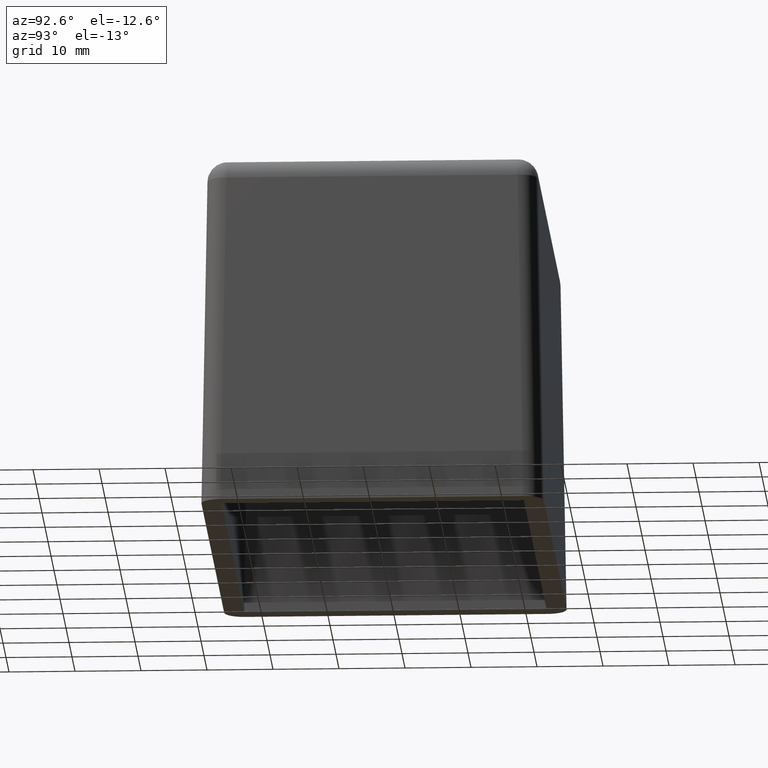
[diagram: clean part render]
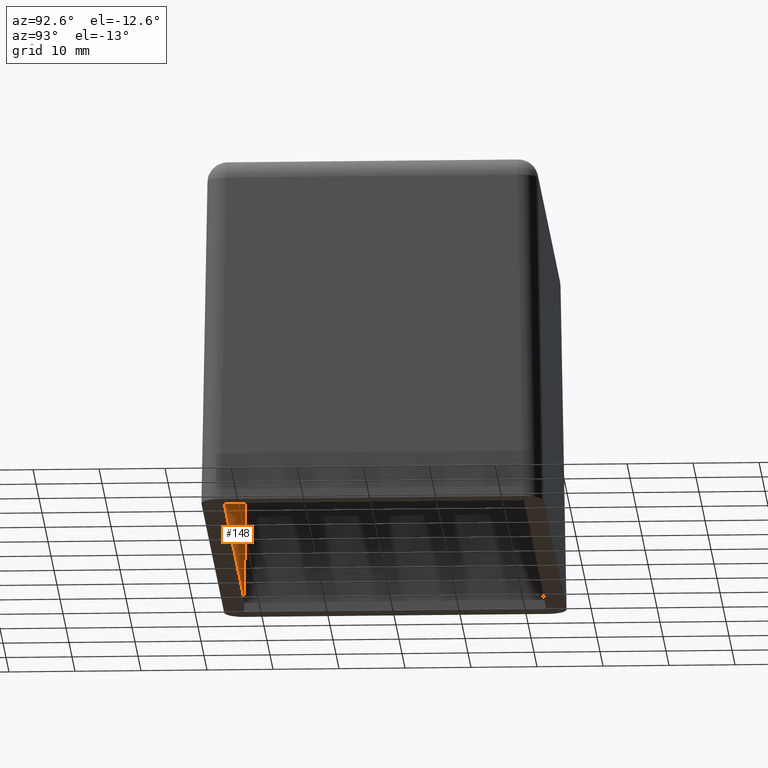
[diagram: same view with one face highlighted and labeled with its STEP entity id]
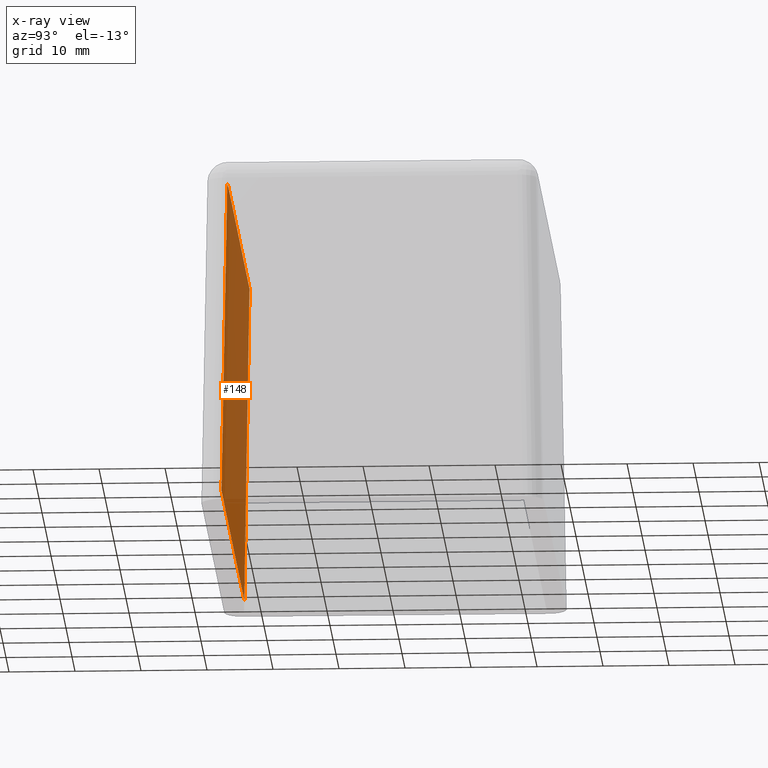
[diagram: x-ray of the same camera — body ghosted, the highlighted face saturated]
A machine part, auxiliary view. The second image highlights one B-rep face of the part: STEP entity #148.
The next image is the same camera in x-ray: the body ghosted, the highlighted face saturated — about 73% of this face is hidden behind the body in this view.
In plain terms, the highlighted planar face has unit normal (0, -0.9998, 0.0175).
Its self-contained STEP definition (entity closure, byte-faithful):
#148 = ADVANCED_FACE( '', ( #364 ), #365, .F. );
#364 = FACE_OUTER_BOUND( '', #640, .T. );
#365 = PLANE( '', #641 );
#640 = EDGE_LOOP( '', ( #1400, #1401, #1402, #1403 ) );
#641 = AXIS2_PLACEMENT_3D( '', #1404, #1405, #1406 );
#1400 = ORIENTED_EDGE( '', *, *, #2087, .F. );
#1401 = ORIENTED_EDGE( '', *, *, #2083, .T. );
#1402 = ORIENTED_EDGE( '', *, *, #2086, .T. );
#1403 = ORIENTED_EDGE( '', *, *, #2078, .F. );
#1404 = CARTESIAN_POINT( '', ( -37.5000000000000, -22.5000000000000, 25.0000000000000 ) );
#1405 = DIRECTION( '', ( 0.000000000000000, -0.999847695156391, 0.0174524064372835 ) );
#1406 = DIRECTION( '', ( 0.000000000000000, -0.0174524064372835, -0.999847695156391 ) );
#2078 = EDGE_CURVE( '', #2570, #2557, #2575, .F. );
#2083 = EDGE_CURVE( '', #2578, #2582, #2584, .F. );
#2086 = EDGE_CURVE( '', #2582, #2557, #2587, .T. );
#2087 = EDGE_CURVE( '', #2578, #2570, #2588, .T. );
#2557 = VERTEX_POINT( '', #3485 );
#2570 = VERTEX_POINT( '', #3505 );
#2575 = LINE( '', #3513, #3514 );
#2578 = VERTEX_POINT( '', #3518 );
#2582 = VERTEX_POINT( '', #3524 );
#2584 = LINE( '', #3527, #3528 );
#2587 = LINE( '', #3533, #3534 );
#2588 = LINE( '', #3535, #3536 );
#3485 = CARTESIAN_POINT( '', ( 37.9014664933490, -22.9014664933490, 1.99999999999999 ) );
#3505 = CARTESIAN_POINT( '', ( -37.9014664933490, -22.9014664933490, 1.99999999999999 ) );
#3513 = CARTESIAN_POINT( '', ( -37.5000000000000, -22.9014664933490, 1.99999999999999 ) );
#3514 = VECTOR( '', #3905, 1000.00000000000 );
#3518 = CARTESIAN_POINT( '', ( -37.0636233767946, -22.0636233767946, 50.0000000000000 ) );
#3524 = CARTESIAN_POINT( '', ( 37.0636233767946, -22.0636233767946, 50.0000000000000 ) );
#3527 = CARTESIAN_POINT( '', ( -37.5000000000000, -22.0636233767946, 50.0000000000000 ) );
#3528 = VECTOR( '', #3910, 1000.00000000000 );
#3533 = CARTESIAN_POINT( '', ( 37.5000000000000, -22.5000000000000, 25.0000000000000 ) );
#3534 = VECTOR( '', #3913, 1000.00000000000 );
#3535 = CARTESIAN_POINT( '', ( -37.5000000000000, -22.5000000000000, 25.0000000000000 ) );
#3536 = VECTOR( '', #3914, 1000.00000000000 );
#3905 = DIRECTION( '', ( -1.00000000000000, 0.000000000000000, 0.000000000000000 ) );
#3910 = DIRECTION( '', ( -1.00000000000000, 0.000000000000000, 0.000000000000000 ) );
#3913 = DIRECTION( '', ( 0.0174497491606827, -0.0174497491606827, -0.999695459881887 ) );
#3914 = DIRECTION( '', ( -0.0174497491606827, -0.0174497491606827, -0.999695459881887 ) );